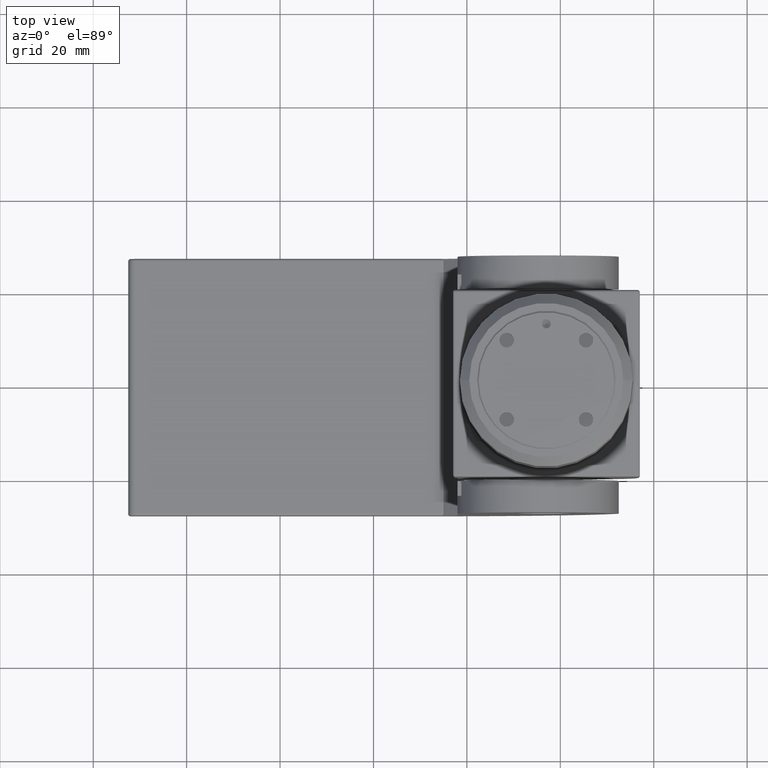
[diagram: clean part render]
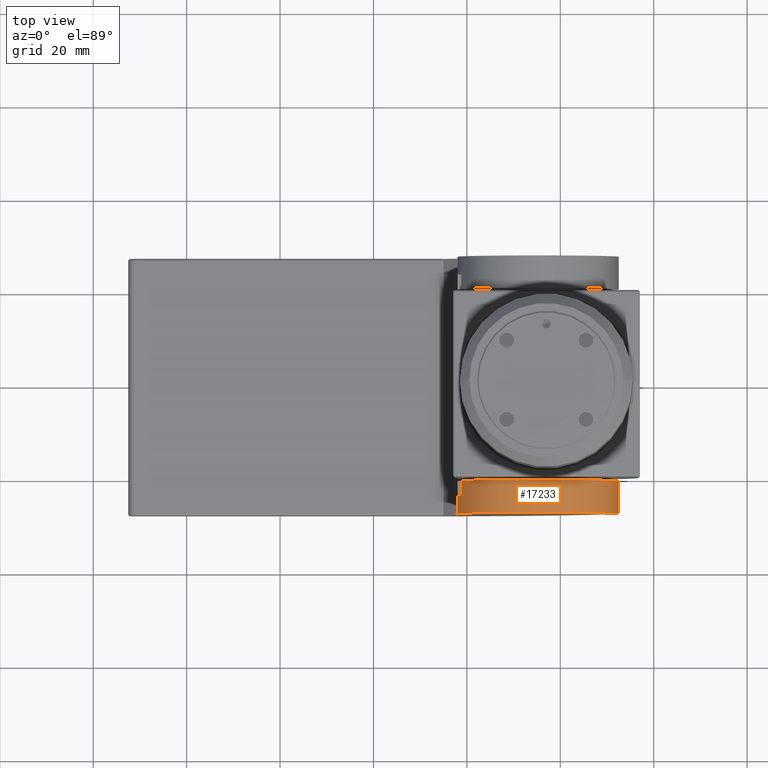
[diagram: same view with one face highlighted and labeled with its STEP entity id]
A machine part, top view. The second image highlights one B-rep face of the part: STEP entity #17233.
In plain terms, the highlighted cylindrical surface (partial cylindrical patch) has radius 17.25 mm, axis along (-0, -1, -0).
Its self-contained STEP definition (entity closure, byte-faithful):
#652 = VERTEX_POINT ( 'NONE', #9511 ) ;
#1509 = DIRECTION ( 'NONE',  ( -0.000000000000000000, -1.000000000000000000, -0.000000000000000000 ) ) ;
#2025 = CIRCLE ( 'NONE', #6983, 17.25000000000000711 ) ;
#2818 = CARTESIAN_POINT ( 'NONE',  ( 18.81832327484500667, 27.50000000000000000, 13.49999999999999645 ) ) ;
#2855 = VERTEX_POINT ( 'NONE', #11871 ) ;
#3076 = VERTEX_POINT ( 'NONE', #13371 ) ;
#4230 = CIRCLE ( 'NONE', #6224, 17.25000000000000711 ) ;
#4341 = ORIENTED_EDGE ( 'NONE', *, *, #22009, .T. ) ;
#4567 = CARTESIAN_POINT ( 'NONE',  ( 52.50000000000000711, 27.50000000000000000, 8.249999999999998224 ) ) ;
#4937 = DIRECTION ( 'NONE',  ( -0.000000000000000000, -1.000000000000000000, -0.000000000000000000 ) ) ;
#5175 = DIRECTION ( 'NONE',  ( 0.000000000000000000, 1.000000000000000000, 0.000000000000000000 ) ) ;
#5218 = DIRECTION ( 'NONE',  ( 0.000000000000000000, 0.000000000000000000, 1.000000000000000000 ) ) ;
#6224 = AXIS2_PLACEMENT_3D ( 'NONE', #20713, #5175, #13921 ) ;
#6315 = CARTESIAN_POINT ( 'NONE',  ( 18.81832327484500667, -20.50000000000000000, 13.49999999999999645 ) ) ;
#6566 = ORIENTED_EDGE ( 'NONE', *, *, #22314, .T. ) ;
#6718 = LINE ( 'NONE', #2818, #9667 ) ;
#6983 = AXIS2_PLACEMENT_3D ( 'NONE', #12229, #14046, #17483 ) ;
#7207 = EDGE_CURVE ( 'NONE', #3076, #652, #20799, .T. ) ;
#9410 = VERTEX_POINT ( 'NONE', #15524 ) ;
#9511 = CARTESIAN_POINT ( 'NONE',  ( 17.99999999999998934, -27.50000000000000000, 8.249999999999992895 ) ) ;
#9667 = VECTOR ( 'NONE', #21661, 1000.000000000000000 ) ;
#9672 = AXIS2_PLACEMENT_3D ( 'NONE', #17160, #1509, #13570 ) ;
#9770 = ORIENTED_EDGE ( 'NONE', *, *, #7207, .T. ) ;
#10606 = AXIS2_PLACEMENT_3D ( 'NONE', #15396, #15472, #5218 ) ;
#11871 = CARTESIAN_POINT ( 'NONE',  ( 18.81832327484500667, -23.75000000000000355, 13.49999999999999645 ) ) ;
#12064 = ORIENTED_EDGE ( 'NONE', *, *, #18890, .F. ) ;
#12079 = CYLINDRICAL_SURFACE ( 'NONE', #9672, 17.25000000000000711 ) ;
#12229 = CARTESIAN_POINT ( 'NONE',  ( 35.25000000000000000, -20.50000000000000000, 8.249999999999996447 ) ) ;
#12277 = ORIENTED_EDGE ( 'NONE', *, *, #19421, .T. ) ;
#12618 = CIRCLE ( 'NONE', #10606, 17.25000000000000711 ) ;
#12742 = VECTOR ( 'NONE', #16757, 1000.000000000000000 ) ;
#13219 = EDGE_LOOP ( 'NONE', ( #12277, #4341, #12064, #9770, #6566, #22142 ) ) ;
#13222 = EDGE_CURVE ( 'NONE', #9410, #15737, #18681, .T. ) ;
#13371 = CARTESIAN_POINT ( 'NONE',  ( 17.99999999999998934, -23.75000000000000355, 8.249999999999996447 ) ) ;
#13535 = CARTESIAN_POINT ( 'NONE',  ( 17.99999999999998934, 27.50000000000000000, 8.249999999999992895 ) ) ;
#13570 = DIRECTION ( 'NONE',  ( 0.000000000000000000, 0.000000000000000000, -1.000000000000000000 ) ) ;
#13921 = DIRECTION ( 'NONE',  ( 0.000000000000000000, 0.000000000000000000, 1.000000000000000000 ) ) ;
#14046 = DIRECTION ( 'NONE',  ( 0.000000000000000000, -1.000000000000000000, 0.000000000000000000 ) ) ;
#15306 = FACE_OUTER_BOUND ( 'NONE', #13219, .T. ) ;
#15396 = CARTESIAN_POINT ( 'NONE',  ( 35.25000000000000000, -27.50000000000000000, 8.249999999999996447 ) ) ;
#15472 = DIRECTION ( 'NONE',  ( 0.000000000000000000, 1.000000000000000000, 0.000000000000000000 ) ) ;
#15524 = CARTESIAN_POINT ( 'NONE',  ( 52.50000000000000711, -20.50000000000000000, 8.249999999999998224 ) ) ;
#15737 = VERTEX_POINT ( 'NONE', #19082 ) ;
#16757 = DIRECTION ( 'NONE',  ( -0.000000000000000000, -1.000000000000000000, -0.000000000000000000 ) ) ;
#17160 = CARTESIAN_POINT ( 'NONE',  ( 35.25000000000000000, 27.50000000000000000, 8.249999999999996447 ) ) ;
#17233 = ADVANCED_FACE ( 'NONE', ( #15306 ), #12079, .T. ) ;
#17483 = DIRECTION ( 'NONE',  ( 0.000000000000000000, 0.000000000000000000, -1.000000000000000000 ) ) ;
#18405 = VERTEX_POINT ( 'NONE', #6315 ) ;
#18681 = LINE ( 'NONE', #4567, #12742 ) ;
#18890 = EDGE_CURVE ( 'NONE', #3076, #2855, #4230, .T. ) ;
#19082 = CARTESIAN_POINT ( 'NONE',  ( 52.50000000000000711, -27.50000000000000000, 8.249999999999998224 ) ) ;
#19421 = EDGE_CURVE ( 'NONE', #9410, #18405, #2025, .T. ) ;
#20713 = CARTESIAN_POINT ( 'NONE',  ( 35.25000000000000000, -23.75000000000000355, 8.249999999999996447 ) ) ;
#20799 = LINE ( 'NONE', #13535, #21339 ) ;
#21339 = VECTOR ( 'NONE', #4937, 1000.000000000000000 ) ;
#21661 = DIRECTION ( 'NONE',  ( -0.000000000000000000, -1.000000000000000000, -0.000000000000000000 ) ) ;
#22009 = EDGE_CURVE ( 'NONE', #18405, #2855, #6718, .T. ) ;
#22142 = ORIENTED_EDGE ( 'NONE', *, *, #13222, .F. ) ;
#22314 = EDGE_CURVE ( 'NONE', #652, #15737, #12618, .T. ) ;